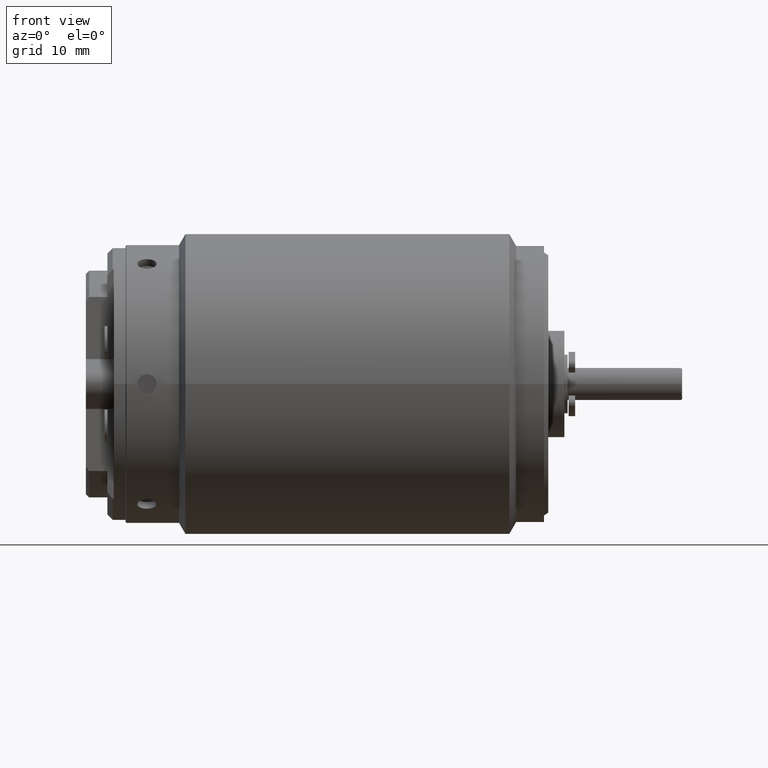
[diagram: clean part render]
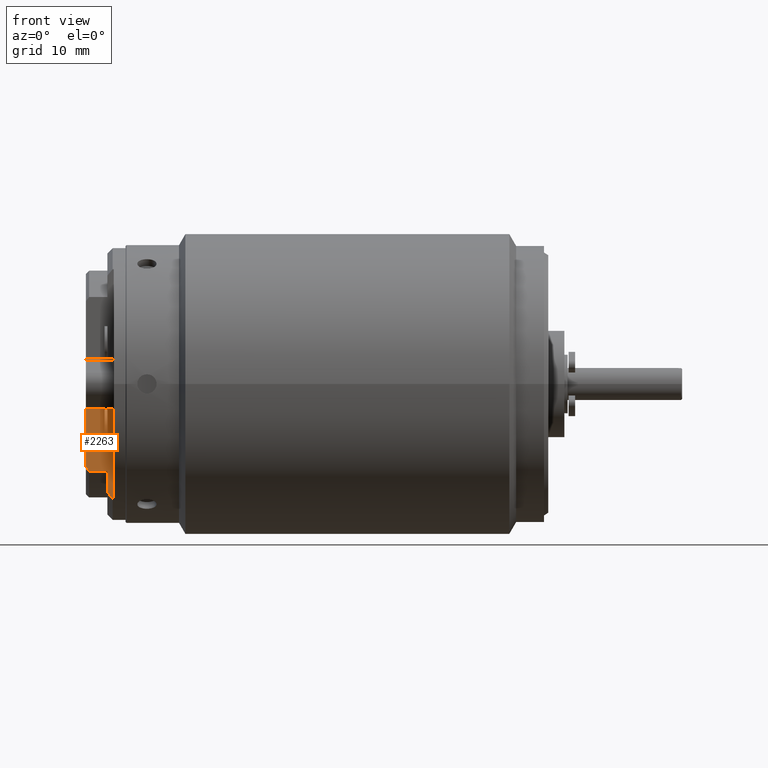
[diagram: same view with one face highlighted and labeled with its STEP entity id]
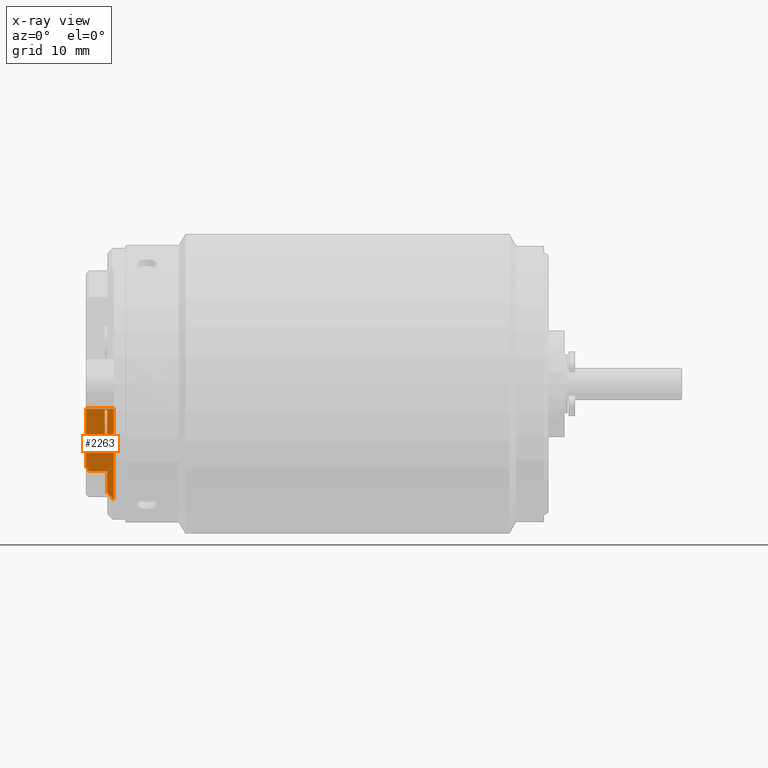
[diagram: x-ray of the same camera — body ghosted, the highlighted face saturated]
A machine part, front view. The second image highlights one B-rep face of the part: STEP entity #2263.
The next image is the same camera in x-ray: the body ghosted, the highlighted face saturated — about 0% of this face is hidden behind the body in this view.
In plain terms, the highlighted planar face has unit normal (0, 1, 0).
Its self-contained STEP definition (entity closure, byte-faithful):
#50=CARTESIAN_POINT('',(-3.699999569240E0,-6.799996587377E0,-7.736273968895E0));
#51=CARTESIAN_POINT('',(-3.667238679951E0,-6.799996587377E0,-7.779891442055E0));
#52=CARTESIAN_POINT('',(-3.601325177594E0,-6.800001478803E0,-7.867316271496E0));
#53=CARTESIAN_POINT('',(-3.501325978388E0,-6.799999943123E0,-7.999028881847E0));
#54=CARTESIAN_POINT('',(-3.433897579549E0,-6.799999146844E0,-8.087225049004E0));
#55=CARTESIAN_POINT('',(-3.399995566937E0,-6.799999146844E0,-8.131419179833E0));
#95=DIRECTION('',(1.527810518957E-7,-3.005431658541E-13,-1.E0));
#96=VECTOR('',#95,1.997745016131E0);
#97=CARTESIAN_POINT('',(-1.7E0,-6.8E0,-8.131420540102E0));
#98=LINE('',#97,#96);
#123=DIRECTION('',(9.999999999996E-1,-5.018579914338E-7,-8.001605254194E-7));
#124=VECTOR('',#123,1.699995566937E0);
#125=CARTESIAN_POINT('',(-3.399995566937E0,-6.799999146844E0,
-8.131419179833E0));
#126=LINE('',#125,#124);
#127=DIRECTION('',(0.E0,0.E0,-1.E0));
#128=VECTOR('',#127,8.404815959881E0);
#129=CARTESIAN_POINT('',(-1.1E0,-6.8E0,-2.321320343560E0));
#130=LINE('',#129,#128);
#131=DIRECTION('',(-1.E0,-4.973799150348E-13,6.679101716181E-12));
#132=VECTOR('',#131,9.999999999946E-2);
#133=CARTESIAN_POINT('',(-1.1E0,-6.8E0,-1.072613630344E1));
#134=LINE('',#133,#132);
#162=DIRECTION('',(3.977500086245E-8,6.302219515595E-7,-9.999999999998E-1));
#163=VECTOR('',#162,5.414953625336E0);
#164=CARTESIAN_POINT('',(-3.699999784620E0,-6.8E0,-2.321320343560E0));
#165=LINE('',#164,#163);
#1375=CARTESIAN_POINT('',(-1.699999694782E0,-6.800000000001E0,
-1.012916555623E1));
#1376=CARTESIAN_POINT('',(-1.645602991638E0,-6.800000000001E0,
-1.019468326922E1));
#1377=CARTESIAN_POINT('',(-1.536033617273E0,-6.8E0,-1.032625744873E1));
#1378=CARTESIAN_POINT('',(-1.369364289007E0,-6.8E0,-1.052524696745E1));
#1379=CARTESIAN_POINT('',(-1.256709708592E0,-6.8E0,-1.065899066229E1));
#1380=CARTESIAN_POINT('',(-1.199999999999E0,-6.8E0,-1.072613630344E1));
#1386=DIRECTION('',(-1.E0,0.E0,0.E0));
#1387=VECTOR('',#1386,2.599999784620E0);
#1388=CARTESIAN_POINT('',(-1.1E0,-6.8E0,-2.321320343560E0));
#1389=LINE('',#1388,#1387);
#1576=DIRECTION('',(0.E0,0.E0,-1.E0));
#1577=VECTOR('',#1576,3.E0);
#1578=CARTESIAN_POINT('',(-1.7E0,-6.8E0,-2.4E0));
#1579=LINE('',#1578,#1577);
#1595=DIRECTION('',(-1.E0,0.E0,0.E0));
#1596=VECTOR('',#1595,2.5E-1);
#1597=CARTESIAN_POINT('',(-1.7E0,-6.8E0,-5.4E0));
#1598=LINE('',#1597,#1596);
#1611=DIRECTION('',(0.E0,0.E0,1.E0));
#1612=VECTOR('',#1611,3.E0);
#1613=CARTESIAN_POINT('',(-1.95E0,-6.8E0,-5.4E0));
#1614=LINE('',#1613,#1612);
#1630=DIRECTION('',(1.E0,0.E0,0.E0));
#1631=VECTOR('',#1630,2.5E-1);
#1632=CARTESIAN_POINT('',(-1.95E0,-6.8E0,-2.4E0));
#1633=LINE('',#1632,#1631);
#1943=CARTESIAN_POINT('',(-1.1E0,-6.8E0,-1.072613630344E1));
#1944=CARTESIAN_POINT('',(-1.199999999999E0,-6.8E0,-1.072613630344E1));
#1945=VERTEX_POINT('',#1943);
#1946=VERTEX_POINT('',#1944);
#1955=CARTESIAN_POINT('',(-1.1E0,-6.8E0,-2.321320343560E0));
#1956=VERTEX_POINT('',#1955);
#1971=VERTEX_POINT('',#50);
#1972=VERTEX_POINT('',#55);
#1973=CARTESIAN_POINT('',(-3.699999784620E0,-6.8E0,-2.321320343560E0));
#1974=VERTEX_POINT('',#1973);
#1975=CARTESIAN_POINT('',(-1.7E0,-6.8E0,-2.4E0));
#1976=CARTESIAN_POINT('',(-1.7E0,-6.8E0,-5.4E0));
#1977=VERTEX_POINT('',#1975);
#1978=VERTEX_POINT('',#1976);
#1979=CARTESIAN_POINT('',(-1.95E0,-6.8E0,-2.4E0));
#1980=VERTEX_POINT('',#1979);
#1981=CARTESIAN_POINT('',(-1.95E0,-6.8E0,-5.4E0));
#1982=VERTEX_POINT('',#1981);
#1995=CARTESIAN_POINT('',(-1.7E0,-6.8E0,-8.131420540102E0));
#1996=VERTEX_POINT('',#1995);
#1997=CARTESIAN_POINT('',(-1.699999694782E0,-6.800000000001E0,
-1.012916555623E1));
#1998=VERTEX_POINT('',#1997);
#2233=CARTESIAN_POINT('',(-2.4E0,-6.8E0,-6.523728323500E0));
#2234=DIRECTION('',(0.E0,1.E0,0.E0));
#2235=DIRECTION('',(0.E0,0.E0,-1.E0));
#2236=AXIS2_PLACEMENT_3D('',#2233,#2234,#2235);
#2237=PLANE('',#2236);
#2238=ORIENTED_EDGE('',*,*,#2163,.F.);
#2240=ORIENTED_EDGE('',*,*,#2239,.F.);
#2242=ORIENTED_EDGE('',*,*,#2241,.F.);
#2244=ORIENTED_EDGE('',*,*,#2243,.T.);
#2246=ORIENTED_EDGE('',*,*,#2245,.T.);
#2248=ORIENTED_EDGE('',*,*,#2247,.F.);
#2249=ORIENTED_EDGE('',*,*,#2209,.F.);
#2250=ORIENTED_EDGE('',*,*,#2227,.F.);
#2251=EDGE_LOOP('',(#2238,#2240,#2242,#2244,#2246,#2248,#2249,#2250));
#2252=FACE_OUTER_BOUND('',#2251,.F.);
#2254=ORIENTED_EDGE('',*,*,#2253,.F.);
#2256=ORIENTED_EDGE('',*,*,#2255,.F.);
#2258=ORIENTED_EDGE('',*,*,#2257,.F.);
#2260=ORIENTED_EDGE('',*,*,#2259,.F.);
#2261=EDGE_LOOP('',(#2254,#2256,#2258,#2260));
#2262=FACE_BOUND('',#2261,.F.);
#2263=ADVANCED_FACE('',(#2252,#2262),#2237,.F.);
#56=B_SPLINE_CURVE_WITH_KNOTS('',3,(#50,#51,#52,#53,#54,#55),.UNSPECIFIED.,.F.,
.F.,(4,1,1,4),(0.E0,3.333333333333E-1,6.666666666667E-1,1.E0),.UNSPECIFIED.);
#1381=B_SPLINE_CURVE_WITH_KNOTS('',3,(#1375,#1376,#1377,#1378,#1379,#1380),
.UNSPECIFIED.,.F.,.F.,(4,1,1,4),(0.E0,3.333333333333E-1,6.666666666667E-1,1.E0),
.UNSPECIFIED.);
#2163=EDGE_CURVE('',#1971,#1972,#56,.T.);
#2209=EDGE_CURVE('',#1996,#1998,#98,.T.);
#2227=EDGE_CURVE('',#1972,#1996,#126,.T.);
#2239=EDGE_CURVE('',#1974,#1971,#165,.T.);
#2241=EDGE_CURVE('',#1956,#1974,#1389,.T.);
#2243=EDGE_CURVE('',#1956,#1945,#130,.T.);
#2245=EDGE_CURVE('',#1945,#1946,#134,.T.);
#2247=EDGE_CURVE('',#1998,#1946,#1381,.T.);
#2253=EDGE_CURVE('',#1977,#1978,#1579,.T.);
#2255=EDGE_CURVE('',#1980,#1977,#1633,.T.);
#2257=EDGE_CURVE('',#1982,#1980,#1614,.T.);
#2259=EDGE_CURVE('',#1978,#1982,#1598,.T.);